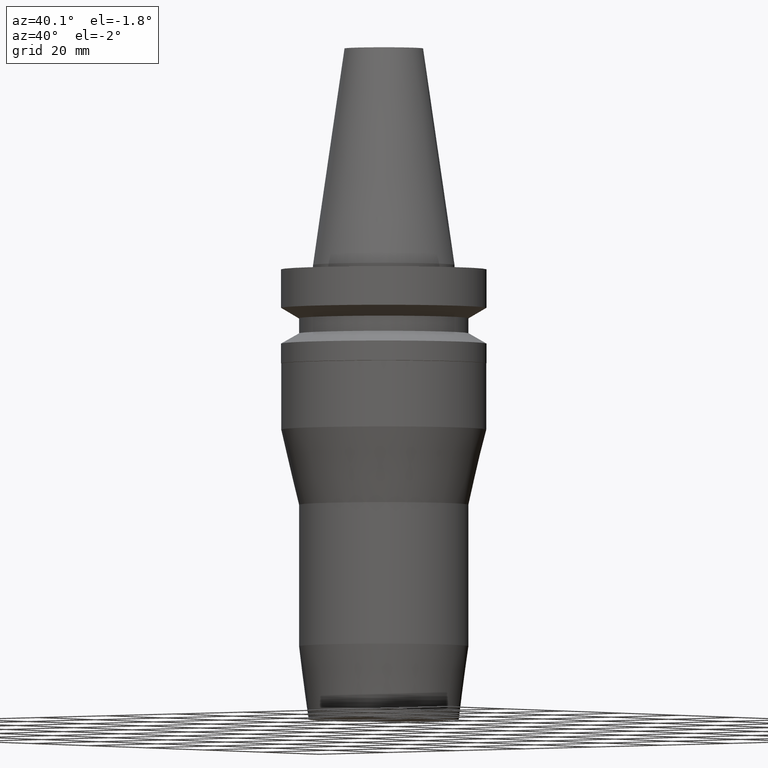
[diagram: clean part render]
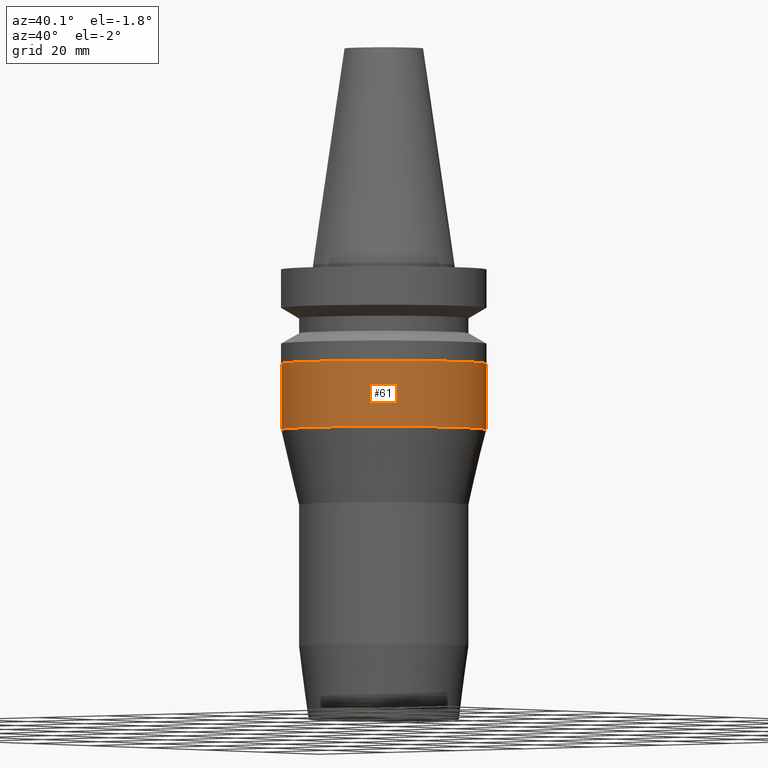
[diagram: same view with one face highlighted and labeled with its STEP entity id]
A machine part, auxiliary view. The second image highlights one B-rep face of the part: STEP entity #61.
In plain terms, the highlighted cylindrical surface (bore or boss wall) has radius 22.95 mm, axis along (0, 0, -1).
Its self-contained STEP definition (entity closure, byte-faithful):
#61=ADVANCED_FACE('Unnamed[1]',(#156,#157),#158,.T.);
#65=EDGE_CURVE('Unnamed[1]',#163,#163,#164,.T.);
#86=EDGE_CURVE('Unnamed[1]',#196,#196,#197,.T.);
#156=FACE_BOUND('',#284,.T.);
#157=FACE_BOUND('',#285,.T.);
#158=CYLINDRICAL_SURFACE('',#286,22.9499999999998);
#163=VERTEX_POINT('',#293);
#164=CIRCLE('',#294,22.9500000000002);
#196=VERTEX_POINT('',#334);
#197=CIRCLE('',#335,22.9499999999995);
#284=EDGE_LOOP('',(#427));
#285=EDGE_LOOP('',(#428));
#286=AXIS2_PLACEMENT_3D('',#429,#430,#431);
#293=CARTESIAN_POINT('',(2.25335011043082E-015,22.9500000000002,-36.7999999999949));
#294=AXIS2_PLACEMENT_3D('',#435,#436,#437);
#334=CARTESIAN_POINT('',(1.35017309606007E-015,22.9499999999995,-22.0500000000018));
#335=AXIS2_PLACEMENT_3D('',#473,#474,#475);
#427=ORIENTED_EDGE('',*,*,#65,.F.);
#428=ORIENTED_EDGE('',*,*,#86,.T.);
#429=CARTESIAN_POINT('',(1.80176160324544E-015,3.60352320649089E-015,-29.4249999999984));
#430=DIRECTION('',(6.12323399573677E-017,1.22464679914735E-016,-1.0));
#431=DIRECTION('',(-1.23259516440783E-032,1.0,1.22464679914735E-016));
#435=CARTESIAN_POINT('',(2.25335011043082E-015,4.50670022086164E-015,-36.7999999999949));
#436=DIRECTION('',(6.12323399573677E-017,1.22464679914735E-016,-1.0));
#437=DIRECTION('',(-1.23259516440783E-032,1.0,1.22464679914735E-016));
#473=CARTESIAN_POINT('',(1.35017309606007E-015,2.70034619212013E-015,-22.0500000000018));
#474=DIRECTION('',(6.12323399573677E-017,1.22464679914735E-016,-1.0));
#475=DIRECTION('',(-1.23259516440783E-032,1.0,1.22464679914735E-016));